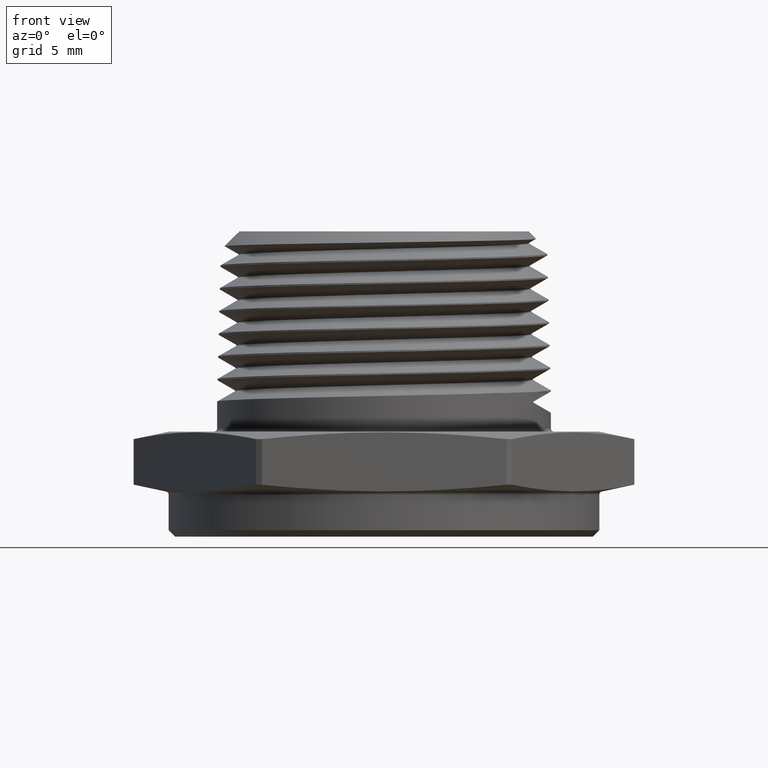
[diagram: clean part render]
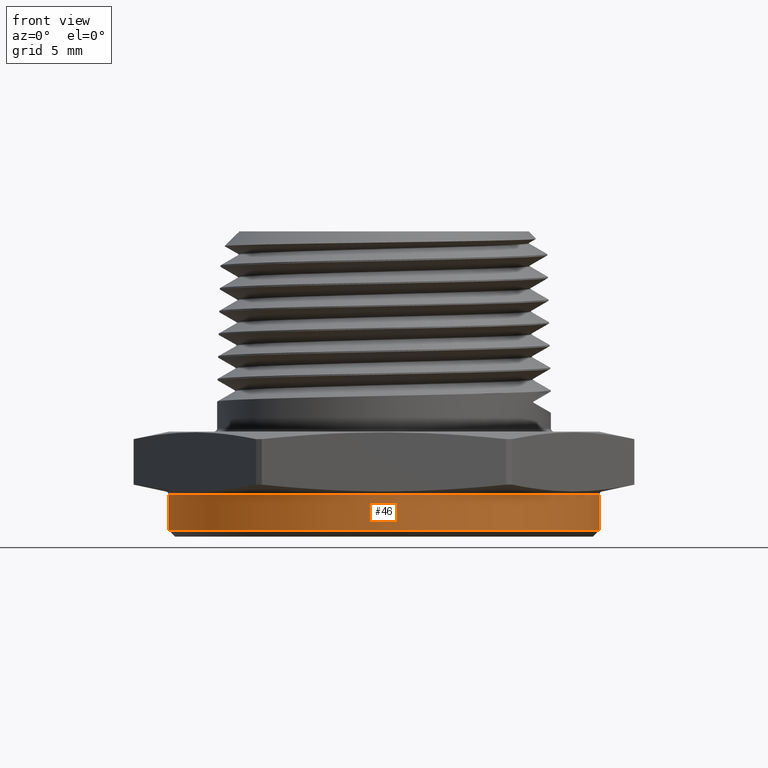
[diagram: same view with one face highlighted and labeled with its STEP entity id]
A machine part, front view. The second image highlights one B-rep face of the part: STEP entity #46.
In plain terms, the highlighted cylindrical surface (partial cylindrical patch) has radius 17.2085 mm, axis along (0, 0, 1).
Its self-contained STEP definition (entity closure, byte-faithful):
#46 = ADVANCED_FACE ( 'NONE', ( #692 ), #695, .T. ) ;
#245 = EDGE_LOOP ( 'NONE', ( #4703, #4702, #4704, #4660 ) ) ;
#527 = AXIS2_PLACEMENT_3D ( 'NONE', #2061, #2057, #2058 ) ;
#558 = AXIS2_PLACEMENT_3D ( 'NONE', #2742, #2743, #2744 ) ;
#571 = AXIS2_PLACEMENT_3D ( 'NONE', #3671, #3672, #3673 ) ;
#692 = FACE_OUTER_BOUND ( 'NONE', #245, .T. ) ;
#695 = CYLINDRICAL_SURFACE ( 'NONE', #527, 0.6774999999999999900 ) ;
#761 = CIRCLE ( 'NONE', #558, 0.6774999999999999900 ) ;
#795 = CIRCLE ( 'NONE', #571, 0.6774999999999999900 ) ;
#799 = LINE ( 'NONE', #3683, #803 ) ;
#803 = VECTOR ( 'NONE', #3678, 39.37007874015748100 ) ;
#804 = LINE ( 'NONE', #3674, #806 ) ;
#806 = VECTOR ( 'NONE', #3682, 39.37007874015748100 ) ;
#1066 = VERTEX_POINT ( 'NONE', #3081 ) ;
#1146 = VERTEX_POINT ( 'NONE', #3168 ) ;
#1149 = VERTEX_POINT ( 'NONE', #3171 ) ;
#1151 = VERTEX_POINT ( 'NONE', #3173 ) ;
#1888 = EDGE_CURVE ( 'NONE', #1151, #1066, #761, .T. ) ;
#1914 = EDGE_CURVE ( 'NONE', #1149, #1146, #795, .T. ) ;
#1918 = EDGE_CURVE ( 'NONE', #1151, #1146, #799, .T. ) ;
#1920 = EDGE_CURVE ( 'NONE', #1066, #1149, #804, .T. ) ;
#2057 = DIRECTION ( 'NONE',  ( -0.0000000000000000000, -0.0000000000000000000, 1.000000000000000000 ) ) ;
#2058 = DIRECTION ( 'NONE',  ( 1.000000000000000000, 0.0000000000000000000, 0.0000000000000000000 ) ) ;
#2061 = CARTESIAN_POINT ( 'NONE',  ( 0.0000000000000000000, 0.0000000000000000000, -0.1400000000000000100 ) ) ;
#2742 = CARTESIAN_POINT ( 'NONE',  ( 0.0000000000000000000, 0.0000000000000000000, -0.1199999999999995400 ) ) ;
#2743 = DIRECTION ( 'NONE',  ( 0.0000000000000000000, 0.0000000000000000000, 1.000000000000000000 ) ) ;
#2744 = DIRECTION ( 'NONE',  ( -1.000000000000000000, 0.0000000000000000000, 0.0000000000000000000 ) ) ;
#3081 = CARTESIAN_POINT ( 'NONE',  ( 0.6774999999999999900, 0.0000000000000000000, -0.1199999999999995400 ) ) ;
#3168 = CARTESIAN_POINT ( 'NONE',  ( -0.6774999999999999900, 8.296982064223316200E-017, -0.008097840331950207200 ) ) ;
#3171 = CARTESIAN_POINT ( 'NONE',  ( 0.6774999999999999900, 0.0000000000000000000, -0.008097840331950292200 ) ) ;
#3173 = CARTESIAN_POINT ( 'NONE',  ( -0.6774999999999999900, 8.296982064223316200E-017, -0.1199999999999995400 ) ) ;
#3671 = CARTESIAN_POINT ( 'NONE',  ( 0.0000000000000000000, 0.0000000000000000000, -0.008097840331950248800 ) ) ;
#3672 = DIRECTION ( 'NONE',  ( -6.274932739761922300E-017, -0.0000000000000000000, -1.000000000000000000 ) ) ;
#3673 = DIRECTION ( 'NONE',  ( -1.000000000000000000, 0.0000000000000000000, 6.300387439262599300E-017 ) ) ;
#3674 = CARTESIAN_POINT ( 'NONE',  ( 0.6774999999999999900, 0.0000000000000000000, -0.1400000000000000100 ) ) ;
#3678 = DIRECTION ( 'NONE',  ( -0.0000000000000000000, -0.0000000000000000000, 1.000000000000000000 ) ) ;
#3682 = DIRECTION ( 'NONE',  ( -0.0000000000000000000, -0.0000000000000000000, 1.000000000000000000 ) ) ;
#3683 = CARTESIAN_POINT ( 'NONE',  ( -0.6774999999999999900, 8.296982064223316200E-017, -0.1400000000000000100 ) ) ;
#4660 = ORIENTED_EDGE ( 'NONE', *, *, #1914, .T. ) ;
#4702 = ORIENTED_EDGE ( 'NONE', *, *, #1888, .T. ) ;
#4703 = ORIENTED_EDGE ( 'NONE', *, *, #1918, .F. ) ;
#4704 = ORIENTED_EDGE ( 'NONE', *, *, #1920, .T. ) ;